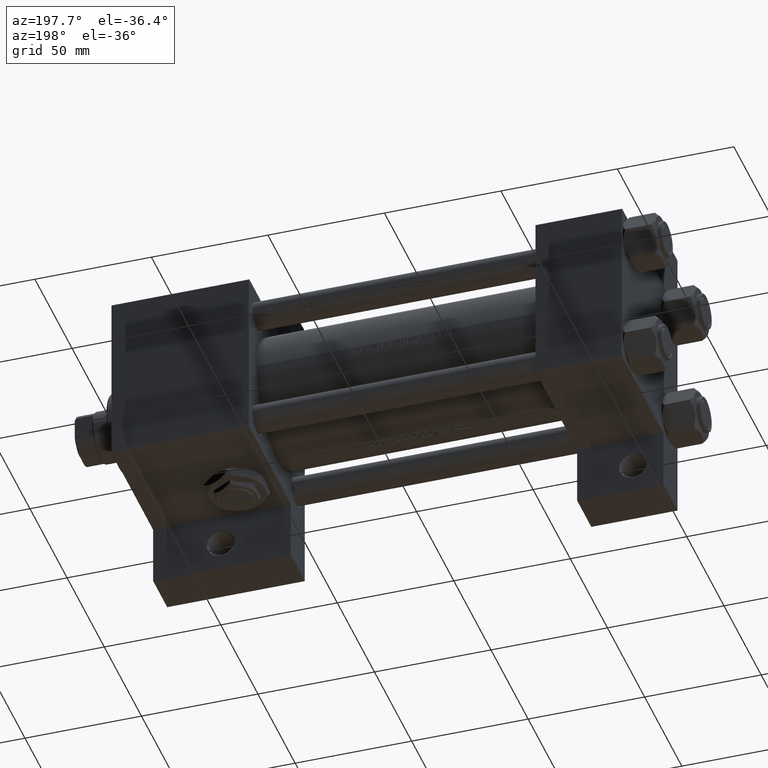
[diagram: clean part render]
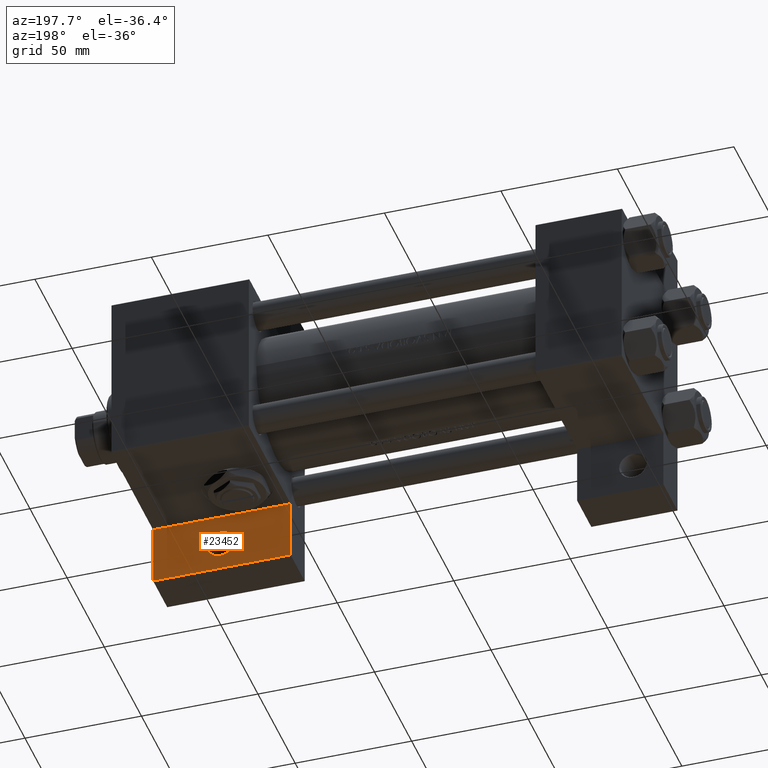
[diagram: same view with one face highlighted and labeled with its STEP entity id]
A machine part, auxiliary view. The second image highlights one B-rep face of the part: STEP entity #23452.
In plain terms, the highlighted planar face has unit normal (0, 1, 0).
Its self-contained STEP definition (entity closure, byte-faithful):
#832 = CARTESIAN_POINT ( 'NONE',  ( 195.9995000000000971, 51.00000000000000000, -18.50000000000000000 ) ) ;
#941 = EDGE_LOOP ( 'NONE', ( #16758, #47584 ) ) ;
#1193 = VERTEX_POINT ( 'NONE', #13269 ) ;
#1864 = AXIS2_PLACEMENT_3D ( 'NONE', #16428, #38660, #38409 ) ;
#2189 = ORIENTED_EDGE ( 'NONE', *, *, #5516, .F. ) ;
#3298 = AXIS2_PLACEMENT_3D ( 'NONE', #8012, #4273, #15715 ) ;
#4273 = DIRECTION ( 'NONE',  ( 0.000000000000000000, 0.000000000000000000, 1.000000000000000000 ) ) ;
#5080 = LINE ( 'NONE', #42514, #40054 ) ;
#5111 = VECTOR ( 'NONE', #37099, 1000.000000000000000 ) ;
#5516 = EDGE_CURVE ( 'NONE', #32673, #37838, #44324, .T. ) ;
#6995 = EDGE_CURVE ( 'NONE', #11957, #1193, #42959, .T. ) ;
#7551 = LINE ( 'NONE', #15248, #11863 ) ;
#7794 = DIRECTION ( 'NONE',  ( -1.000000000000000000, 5.880418562633242031E-16, -0.000000000000000000 ) ) ;
#8012 = CARTESIAN_POINT ( 'NONE',  ( 0.000000000000000000, 0.000000000000000000, -18.50000000000000000 ) ) ;
#9748 = CARTESIAN_POINT ( 'NONE',  ( 184.0004999999999029, 51.00000000000000000, -18.50000000000000000 ) ) ;
#9901 = EDGE_LOOP ( 'NONE', ( #2189, #44540, #34456, #31838 ) ) ;
#11863 = VECTOR ( 'NONE', #7794, 1000.000000000000000 ) ;
#11957 = VERTEX_POINT ( 'NONE', #22895 ) ;
#12756 = CARTESIAN_POINT ( 'NONE',  ( 219.0000000000000568, 63.49999999999998579, -18.50000000000000000 ) ) ;
#13269 = CARTESIAN_POINT ( 'NONE',  ( 219.0000000000000284, 37.49999999999996447, -18.50000000000000000 ) ) ;
#14397 = DIRECTION ( 'NONE',  ( 1.000000000000000000, 0.000000000000000000, 0.000000000000000000 ) ) ;
#14754 = AXIS2_PLACEMENT_3D ( 'NONE', #37133, #48548, #14397 ) ;
#15221 = FACE_BOUND ( 'NONE', #941, .T. ) ;
#15248 = CARTESIAN_POINT ( 'NONE',  ( 160.0000000000000000, 37.50000000000000000, -18.50000000000000000 ) ) ;
#15715 = DIRECTION ( 'NONE',  ( 1.000000000000000000, 0.000000000000000000, -0.000000000000000000 ) ) ;
#16428 = CARTESIAN_POINT ( 'NONE',  ( 190.0000000000000000, 51.00000000000000000, -18.50000000000000000 ) ) ;
#16758 = ORIENTED_EDGE ( 'NONE', *, *, #38728, .T. ) ;
#19113 = EDGE_CURVE ( 'NONE', #1193, #32673, #7551, .T. ) ;
#19363 = CIRCLE ( 'NONE', #1864, 5.999500000000102418 ) ;
#22895 = CARTESIAN_POINT ( 'NONE',  ( 219.0000000000000568, 63.49999999999998579, -18.50000000000000000 ) ) ;
#23363 = VECTOR ( 'NONE', #43938, 1000.000000000000000 ) ;
#23452 = ADVANCED_FACE ( 'NONE', ( #15221, #42181 ), #30452, .T. ) ;
#30452 = PLANE ( 'NONE',  #3298 ) ;
#31499 = EDGE_CURVE ( 'NONE', #37838, #11957, #5080, .T. ) ;
#31765 = DIRECTION ( 'NONE',  ( 1.000000000000000000, 0.000000000000000000, 0.000000000000000000 ) ) ;
#31838 = ORIENTED_EDGE ( 'NONE', *, *, #31499, .F. ) ;
#32673 = VERTEX_POINT ( 'NONE', #38719 ) ;
#32950 = EDGE_CURVE ( 'NONE', #34716, #47864, #19363, .T. ) ;
#33861 = CARTESIAN_POINT ( 'NONE',  ( 160.0000000000000284, 63.49999999999998579, -18.50000000000000000 ) ) ;
#34456 = ORIENTED_EDGE ( 'NONE', *, *, #6995, .F. ) ;
#34716 = VERTEX_POINT ( 'NONE', #9748 ) ;
#36292 = CIRCLE ( 'NONE', #14754, 5.999500000000102418 ) ;
#37099 = DIRECTION ( 'NONE',  ( 1.067522139062651066E-15, 1.000000000000000000, -0.000000000000000000 ) ) ;
#37133 = CARTESIAN_POINT ( 'NONE',  ( 190.0000000000000000, 51.00000000000000000, -18.50000000000000000 ) ) ;
#37838 = VERTEX_POINT ( 'NONE', #33861 ) ;
#38409 = DIRECTION ( 'NONE',  ( 1.000000000000000000, 0.000000000000000000, 0.000000000000000000 ) ) ;
#38660 = DIRECTION ( 'NONE',  ( -0.000000000000000000, -0.000000000000000000, -1.000000000000000000 ) ) ;
#38719 = CARTESIAN_POINT ( 'NONE',  ( 160.0000000000000000, 37.50000000000000000, -18.50000000000000355 ) ) ;
#38728 = EDGE_CURVE ( 'NONE', #47864, #34716, #36292, .T. ) ;
#40054 = VECTOR ( 'NONE', #31765, 1000.000000000000000 ) ;
#42181 = FACE_OUTER_BOUND ( 'NONE', #9901, .T. ) ;
#42514 = CARTESIAN_POINT ( 'NONE',  ( 160.0000000000000284, 63.49999999999998579, -18.50000000000000000 ) ) ;
#42959 = LINE ( 'NONE', #12756, #23363 ) ;
#43938 = DIRECTION ( 'NONE',  ( -1.067522139062649685E-15, -1.000000000000000000, 0.000000000000000000 ) ) ;
#44324 = LINE ( 'NONE', #48521, #5111 ) ;
#44540 = ORIENTED_EDGE ( 'NONE', *, *, #19113, .F. ) ;
#47584 = ORIENTED_EDGE ( 'NONE', *, *, #32950, .T. ) ;
#47864 = VERTEX_POINT ( 'NONE', #832 ) ;
#48521 = CARTESIAN_POINT ( 'NONE',  ( 160.0000000000000284, 63.49999999999998579, -18.50000000000000000 ) ) ;
#48548 = DIRECTION ( 'NONE',  ( -0.000000000000000000, -0.000000000000000000, -1.000000000000000000 ) ) ;